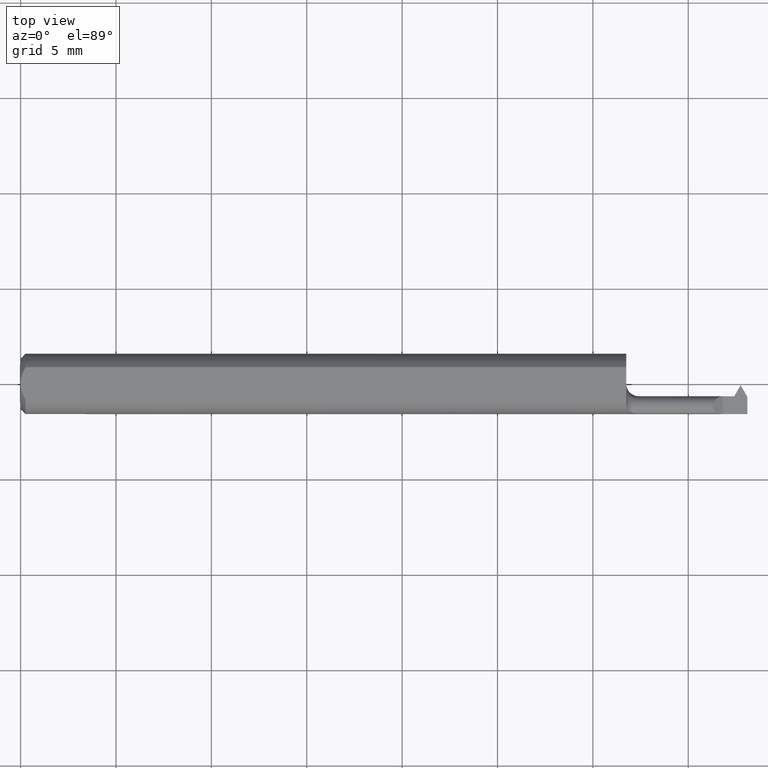
[diagram: clean part render]
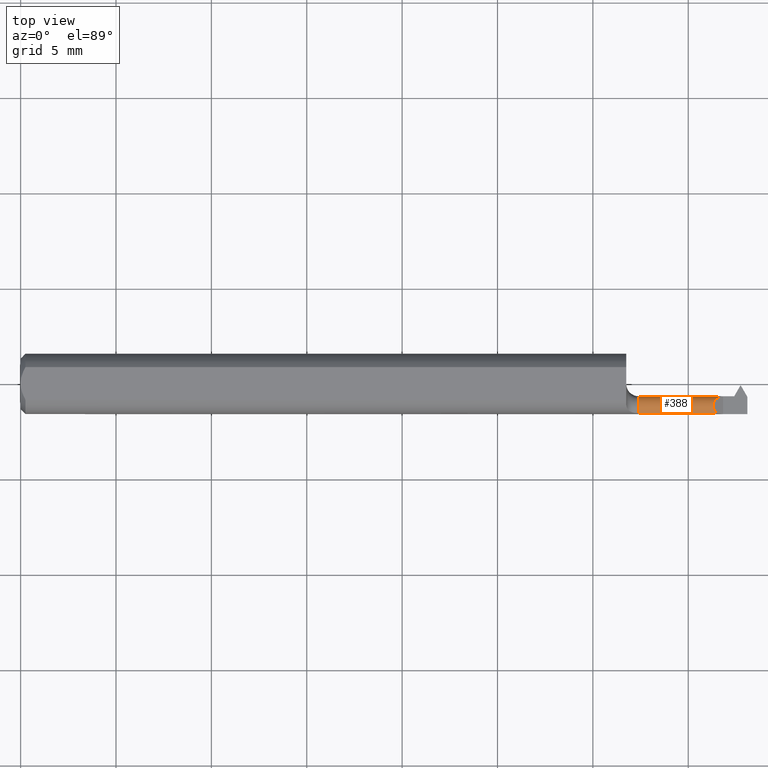
[diagram: same view with one face highlighted and labeled with its STEP entity id]
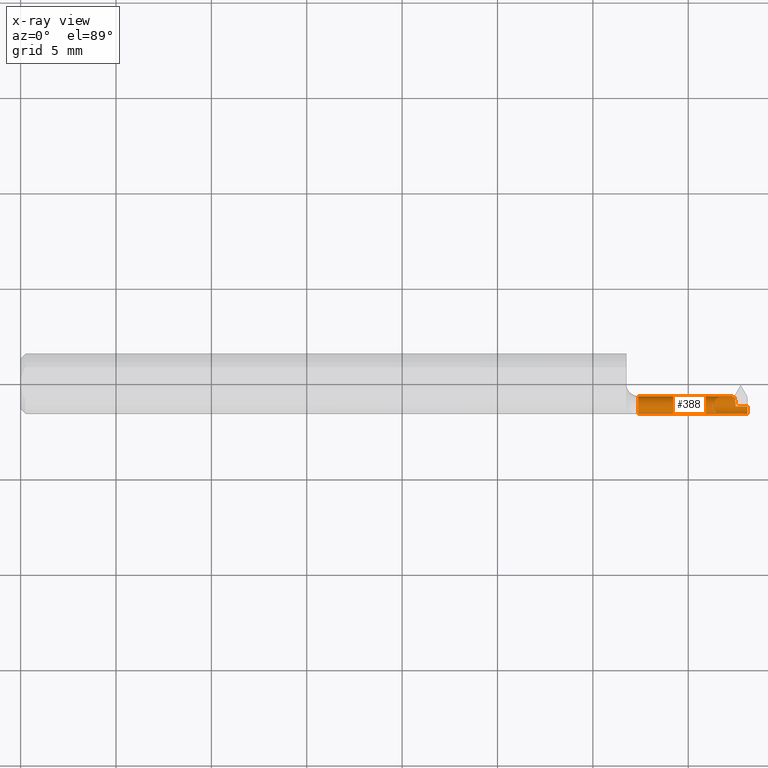
[diagram: x-ray of the same camera — body ghosted, the highlighted face saturated]
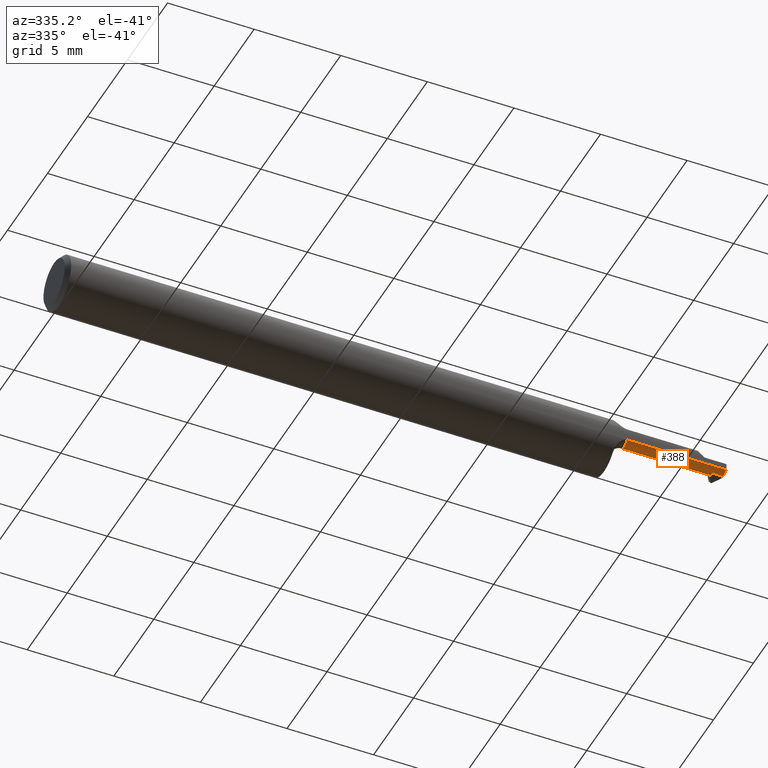
[diagram: same view with one face highlighted and labeled with its STEP entity id]
A machine part, top view. The second image highlights one B-rep face of the part: STEP entity #388.
The next image is the same camera in x-ray: the body ghosted, the highlighted face saturated — about 0% of this face is hidden behind the body in this view.
A second angle (auxiliary view) of the same face is appended — the face is thin or edge-on in the first view.
In plain terms, the highlighted cylindrical surface (edge-blend (fillet) strip) has radius 0.5207 mm, axis along (-1, -0, -0).
Its self-contained STEP definition (entity closure, byte-faithful):
#8 = CARTESIAN_POINT ( 'NONE',  ( 1.470951421547187499, -0.02534999999999999060, 0.000000000000000000 ) ) ;
#13 = CARTESIAN_POINT ( 'NONE',  ( 1.475581018059172633, -0.04585000000000002962, -0.02050000000000003555 ) ) ;
#24 = CYLINDRICAL_SURFACE ( 'NONE', #213, 0.02050000000000005290 ) ;
#32 = EDGE_CURVE ( 'NONE', #569, #557, #489, .T. ) ;
#33 = CARTESIAN_POINT ( 'NONE',  ( 1.469838970708920556, -0.02590058561396286346, -0.005467870559428852743 ) ) ;
#49 = VERTEX_POINT ( 'NONE', #709 ) ;
#53 = VERTEX_POINT ( 'NONE', #262 ) ;
#57 = LINE ( 'NONE', #158, #177 ) ;
#61 = LINE ( 'NONE', #162, #621 ) ;
#63 = CARTESIAN_POINT ( 'NONE',  ( 1.274999999999999911, -0.06073604143947648748, -0.01409452979925874747 ) ) ;
#68 = DIRECTION ( 'NONE',  ( 0.000000000000000000, -1.000000000000000000, 0.000000000000000000 ) ) ;
#84 = CARTESIAN_POINT ( 'NONE',  ( 1.435905470200741219, -0.06073604143947652217, 0.01409452979925866420 ) ) ;
#105 = ORIENTED_EDGE ( 'NONE', *, *, #364, .T. ) ;
#106 = DIRECTION ( 'NONE',  ( -1.000000000000000000, -0.000000000000000000, -0.000000000000000000 ) ) ;
#119 = CARTESIAN_POINT ( 'NONE',  ( 1.250000000000000000, -0.04585000000000003656, 0.000000000000000000 ) ) ;
#124 = CARTESIAN_POINT ( 'NONE',  ( 1.435905470200741219, -0.06073604143947652217, 0.01409452979925866420 ) ) ;
#127 = CARTESIAN_POINT ( 'NONE',  ( 1.473739173235127708, -0.02697965050423148728, -0.008009988134028740367 ) ) ;
#141 = ORIENTED_EDGE ( 'NONE', *, *, #427, .F. ) ;
#158 = CARTESIAN_POINT ( 'NONE',  ( 1.250000000000000000, -0.02697965050422692843, -0.008009988134034759857 ) ) ;
#160 = ORIENTED_EDGE ( 'NONE', *, *, #32, .F. ) ;
#162 = CARTESIAN_POINT ( 'NONE',  ( 1.671951421547187788, -0.04584999999999996717, -0.02050000000000002168 ) ) ;
#167 = CARTESIAN_POINT ( 'NONE',  ( 1.500000000000000222, -0.04585000000000002962, 0.000000000000000000 ) ) ;
#177 = VECTOR ( 'NONE', #231, 39.37007874015748143 ) ;
#185 = ORIENTED_EDGE ( 'NONE', *, *, #507, .T. ) ;
#190 = CARTESIAN_POINT ( 'NONE',  ( 1.274999999999999911, -0.04585000000000003656, 0.000000000000000000 ) ) ;
#197 = DIRECTION ( 'NONE',  ( 1.000000000000000000, 3.846348412950270995E-17, 0.000000000000000000 ) ) ;
#212 = ORIENTED_EDGE ( 'NONE', *, *, #355, .F. ) ;
#213 = AXIS2_PLACEMENT_3D ( 'NONE', #119, #576, #68 ) ;
#218 =( BOUNDED_CURVE ( )  B_SPLINE_CURVE ( 3, ( #124, #236, #615, #460 ),
 .UNSPECIFIED., .F., .F. ) 
 B_SPLINE_CURVE_WITH_KNOTS ( ( 4, 4 ),
 ( 5.470482129107344882, 7.853981633974481902 ),
 .UNSPECIFIED. ) 
 CURVE ( )  GEOMETRIC_REPRESENTATION_ITEM ( )  RATIONAL_B_SPLINE_CURVE ( ( 1.000000000000000000, 0.5800232588578040360, 0.5800232588578040360, 1.000000000000000000 ) ) 
 REPRESENTATION_ITEM ( '' )  );
#227 = CARTESIAN_POINT ( 'NONE',  ( 1.450000000000000178, -0.02534999999999998019, 3.061616997868399042E-17 ) ) ;
#231 = DIRECTION ( 'NONE',  ( -1.000000000000000000, -3.846348412950270995E-17, -0.000000000000000000 ) ) ;
#236 = CARTESIAN_POINT ( 'NONE',  ( 1.420010247461813702, -0.04568598992171429146, 0.02998975253818596948 ) ) ;
#248 = EDGE_CURVE ( 'NONE', #53, #49, #619, .T. ) ;
#249 = CARTESIAN_POINT ( 'NONE',  ( 1.373475710773593983, -0.06073604143947651524, 0.01409452979925868328 ) ) ;
#252 = VECTOR ( 'NONE', #585, 39.37007874015748143 ) ;
#262 = CARTESIAN_POINT ( 'NONE',  ( 1.500000000000000222, -0.06073604143947645279, -0.01409452979925867808 ) ) ;
#269 = AXIS2_PLACEMENT_3D ( 'NONE', #167, #433, #598 ) ;
#285 = VECTOR ( 'NONE', #197, 39.37007874015748143 ) ;
#289 = VERTEX_POINT ( 'NONE', #502 ) ;
#291 = CARTESIAN_POINT ( 'NONE',  ( 1.475386358967280431, -0.03736748372183631289, -0.02050000000000005984 ) ) ;
#292 = ORIENTED_EDGE ( 'NONE', *, *, #553, .F. ) ;
#306 = CARTESIAN_POINT ( 'NONE',  ( 1.373475710773593983, -0.06073604143947651524, -0.01409452979925868328 ) ) ;
#338 = ORIENTED_EDGE ( 'NONE', *, *, #412, .T. ) ;
#355 = EDGE_CURVE ( 'NONE', #495, #366, #466, .T. ) ;
#356 = ORIENTED_EDGE ( 'NONE', *, *, #661, .F. ) ;
#364 = EDGE_CURVE ( 'NONE', #442, #592, #218, .T. ) ;
#366 = VERTEX_POINT ( 'NONE', #127 ) ;
#369 = CARTESIAN_POINT ( 'NONE',  ( 1.470389556322883484, -0.02534999999999997325, -0.002761655807752544118 ) ) ;
#370 = VERTEX_POINT ( 'NONE', #63 ) ;
#377 = AXIS2_PLACEMENT_3D ( 'NONE', #190, #420, #469 ) ;
#386 = ORIENTED_EDGE ( 'NONE', *, *, #520, .T. ) ;
#387 = CARTESIAN_POINT ( 'NONE',  ( 1.469321771042962466, -0.02697965050422499594, -0.008009988134030214882 ) ) ;
#388 = ADVANCED_FACE ( 'NONE', ( #690 ), #24, .T. ) ;
#390 = VECTOR ( 'NONE', #463, 39.37007874015748143 ) ;
#406 = CARTESIAN_POINT ( 'NONE',  ( 1.474695953239303581, -0.03029403366202148423, -0.01581818553757013968 ) ) ;
#412 = EDGE_CURVE ( 'NONE', #289, #442, #517, .T. ) ;
#415 = LINE ( 'NONE', #306, #252 ) ;
#420 = DIRECTION ( 'NONE',  ( -1.000000000000000000, -3.846348412950270995E-17, -0.000000000000000000 ) ) ;
#421 = CIRCLE ( 'NONE', #377, 0.02050000000000007719 ) ;
#427 = EDGE_CURVE ( 'NONE', #289, #370, #421, .T. ) ;
#428 = CARTESIAN_POINT ( 'NONE',  ( 1.470951421547187499, -0.02534999999999999060, 0.000000000000000000 ) ) ;
#433 = DIRECTION ( 'NONE',  ( 1.000000000000000000, 0.000000000000000000, 0.000000000000000000 ) ) ;
#442 = VERTEX_POINT ( 'NONE', #84 ) ;
#460 = CARTESIAN_POINT ( 'NONE',  ( 1.450000000000000178, -0.02534999999999998019, 3.061616997868399042E-17 ) ) ;
#463 = DIRECTION ( 'NONE',  ( 1.000000000000000000, 3.846348412950270995E-17, 0.000000000000000000 ) ) ;
#466 =( BOUNDED_CURVE ( )  B_SPLINE_CURVE ( 3, ( #13, #291, #406, #620 ),
 .UNSPECIFIED., .F., .F. ) 
 B_SPLINE_CURVE_WITH_KNOTS ( ( 4, 4 ),
 ( 3.342305517569140960, 4.511676116405279657 ),
 .UNSPECIFIED. ) 
 CURVE ( )  GEOMETRIC_REPRESENTATION_ITEM ( )  RATIONAL_B_SPLINE_CURVE ( ( 1.000000000000000000, 0.8892572147114569114, 0.8892572147114569114, 1.000000000000000000 ) ) 
 REPRESENTATION_ITEM ( '' )  );
#469 = DIRECTION ( 'NONE',  ( 0.000000000000000000, -1.000000000000000000, 0.000000000000000000 ) ) ;
#471 = LINE ( 'NONE', #701, #285 ) ;
#479 = CARTESIAN_POINT ( 'NONE',  ( 1.475581018059172633, -0.04585000000000002962, -0.02050000000000003555 ) ) ;
#489 =( BOUNDED_CURVE ( )  B_SPLINE_CURVE ( 3, ( #539, #33, #369, #428 ),
 .UNSPECIFIED., .F., .T. ) 
 B_SPLINE_CURVE_WITH_KNOTS ( ( 4, 4 ),
 ( 1.169370598836198205, 1.570796326794896780 ),
 .UNSPECIFIED. ) 
 CURVE ( )  GEOMETRIC_REPRESENTATION_ITEM ( )  RATIONAL_B_SPLINE_CURVE ( ( 1.000000000000000000, 0.9866164697472195044, 0.9866164697472195044, 1.000000000000000000 ) ) 
 REPRESENTATION_ITEM ( '' )  );
#495 = VERTEX_POINT ( 'NONE', #479 ) ;
#502 = CARTESIAN_POINT ( 'NONE',  ( 1.274999999999999911, -0.06073604143947648748, 0.01409452979925874747 ) ) ;
#507 = EDGE_CURVE ( 'NONE', #53, #370, #415, .T. ) ;
#517 = LINE ( 'NONE', #249, #390 ) ;
#520 = EDGE_CURVE ( 'NONE', #592, #557, #471, .T. ) ;
#521 = ORIENTED_EDGE ( 'NONE', *, *, #248, .F. ) ;
#539 = CARTESIAN_POINT ( 'NONE',  ( 1.469321771042962466, -0.02697965050422499594, -0.008009988134030214882 ) ) ;
#553 = EDGE_CURVE ( 'NONE', #49, #495, #61, .T. ) ;
#557 = VERTEX_POINT ( 'NONE', #8 ) ;
#569 = VERTEX_POINT ( 'NONE', #387 ) ;
#576 = DIRECTION ( 'NONE',  ( -1.000000000000000000, -3.846348412950270995E-17, -0.000000000000000000 ) ) ;
#585 = DIRECTION ( 'NONE',  ( -1.000000000000000000, -3.846348412950270995E-17, -0.000000000000000000 ) ) ;
#592 = VERTEX_POINT ( 'NONE', #227 ) ;
#598 = DIRECTION ( 'NONE',  ( 0.000000000000000000, 0.000000000000000000, 1.000000000000000000 ) ) ;
#615 = CARTESIAN_POINT ( 'NONE',  ( 1.428110227122982412, -0.02534999999999999754, 0.02188977287701747085 ) ) ;
#619 = CIRCLE ( 'NONE', #269, 0.02050000000000002862 ) ;
#620 = CARTESIAN_POINT ( 'NONE',  ( 1.473739173235127708, -0.02697965050423148728, -0.008009988134028740367 ) ) ;
#621 = VECTOR ( 'NONE', #106, 39.37007874015748143 ) ;
#661 = EDGE_CURVE ( 'NONE', #366, #569, #57, .T. ) ;
#690 = FACE_OUTER_BOUND ( 'NONE', #719, .T. ) ;
#701 = CARTESIAN_POINT ( 'NONE',  ( 1.250000000000000000, -0.02534999999999999060, 3.061616997868399042E-17 ) ) ;
#709 = CARTESIAN_POINT ( 'NONE',  ( 1.500000000000000222, -0.04584999999999996717, -0.02050000000000002168 ) ) ;
#719 = EDGE_LOOP ( 'NONE', ( #185, #141, #338, #105, #386, #160, #356, #212, #292, #521 ) ) ;